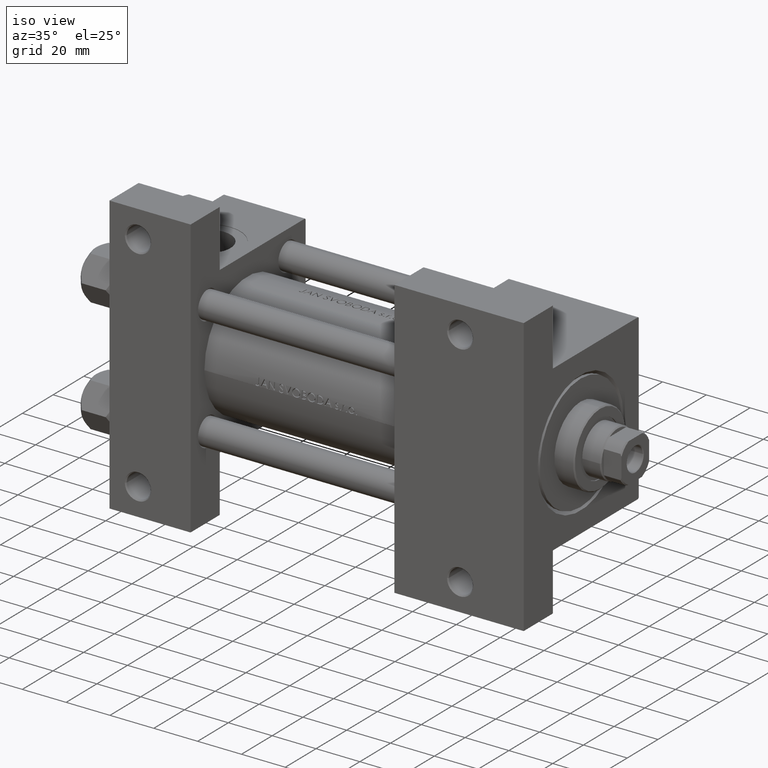
[diagram: clean part render]
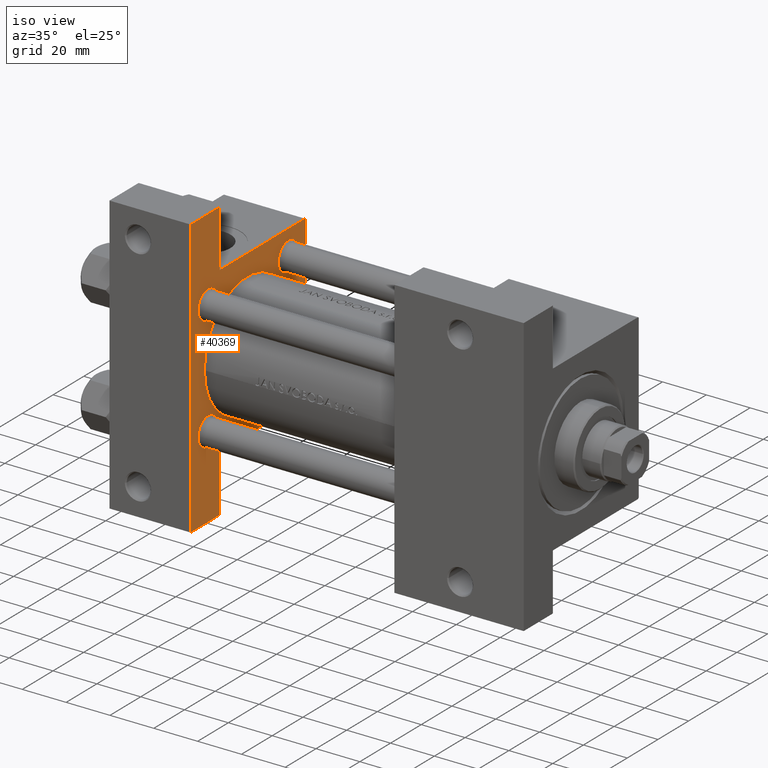
[diagram: same view with one face highlighted and labeled with its STEP entity id]
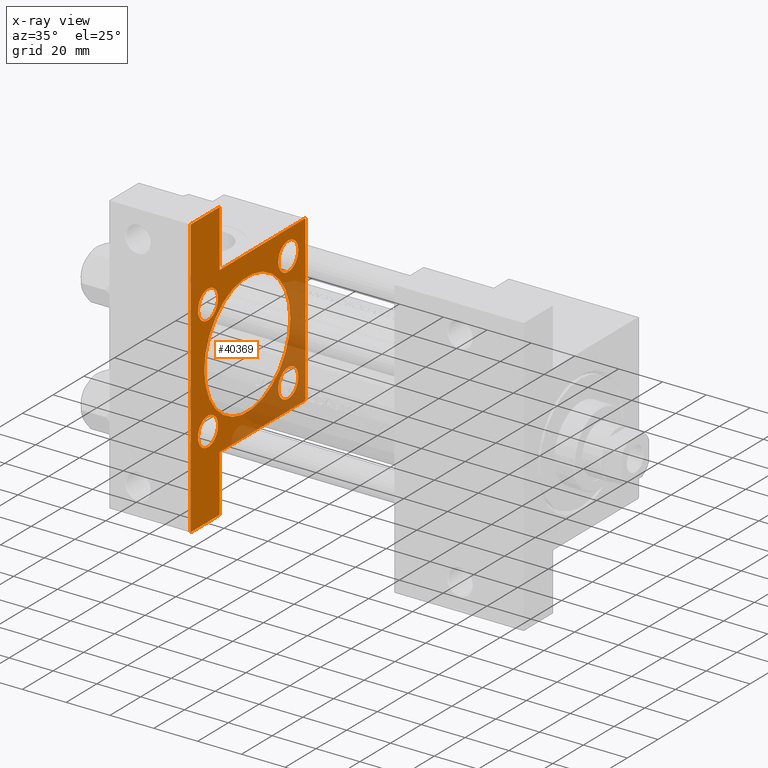
[diagram: x-ray of the same camera — body ghosted, the highlighted face saturated]
A machine part, iso view. The second image highlights one B-rep face of the part: STEP entity #40369.
The next image is the same camera in x-ray: the body ghosted, the highlighted face saturated — about 24% of this face is hidden behind the body in this view.
In plain terms, the highlighted planar face has unit normal (-1, 0, -0).
Its self-contained STEP definition (entity closure, byte-faithful):
#186 = VECTOR ( 'NONE', #20572, 1000.000000000000000 ) ;
#249 = CARTESIAN_POINT ( 'NONE',  ( 37.00000000000001421, 63.50000000000000000, -18.50000000000000355 ) ) ;
#439 = CARTESIAN_POINT ( 'NONE',  ( 37.00000000000000000, 26.14999999999999858, 32.65000000000001279 ) ) ;
#467 = VERTEX_POINT ( 'NONE', #5055 ) ;
#503 = VERTEX_POINT ( 'NONE', #12493 ) ;
#742 = EDGE_LOOP ( 'NONE', ( #37550, #31159 ) ) ;
#1534 = VERTEX_POINT ( 'NONE', #38462 ) ;
#1825 = LINE ( 'NONE', #33146, #16637 ) ;
#2085 = VECTOR ( 'NONE', #39227, 1000.000000000000000 ) ;
#2123 = LINE ( 'NONE', #35484, #2085 ) ;
#2684 = LINE ( 'NONE', #39788, #3213 ) ;
#2832 = CARTESIAN_POINT ( 'NONE',  ( 37.00000000000000000, 36.99999999999999289, 37.50000000000000000 ) ) ;
#3213 = VECTOR ( 'NONE', #13873, 1000.000000000000000 ) ;
#3724 = CARTESIAN_POINT ( 'NONE',  ( 37.00000000000001421, 63.50000000000001421, 26.72167621838005047 ) ) ;
#4688 = CIRCLE ( 'NONE', #32482, 6.500000000000030198 ) ;
#5055 = CARTESIAN_POINT ( 'NONE',  ( 37.00000000000000000, -26.14999999999999147, 32.65000000000004832 ) ) ;
#5117 = VERTEX_POINT ( 'NONE', #44706 ) ;
#5361 = PLANE ( 'NONE',  #34056 ) ;
#5362 = VERTEX_POINT ( 'NONE', #42318 ) ;
#5485 = ORIENTED_EDGE ( 'NONE', *, *, #44597, .T. ) ;
#5553 = CARTESIAN_POINT ( 'NONE',  ( 37.00000000000000000, 37.49999999999999289, -37.50000000000000000 ) ) ;
#5849 = VERTEX_POINT ( 'NONE', #9643 ) ;
#6180 = CARTESIAN_POINT ( 'NONE',  ( 37.00000000000000000, 26.14999999999999858, -32.65000000000000568 ) ) ;
#6504 = ORIENTED_EDGE ( 'NONE', *, *, #34031, .F. ) ;
#6717 = DIRECTION ( 'NONE',  ( 1.000000000000000000, -0.000000000000000000, 0.000000000000000000 ) ) ;
#7067 = DIRECTION ( 'NONE',  ( 0.000000000000000000, 0.000000000000000000, 1.000000000000000000 ) ) ;
#7192 = EDGE_CURVE ( 'NONE', #5362, #46619, #2123, .T. ) ;
#7341 = VERTEX_POINT ( 'NONE', #38171 ) ;
#7387 = CARTESIAN_POINT ( 'NONE',  ( 37.00000000000000000, -26.14999999999999147, -32.65000000000004121 ) ) ;
#7727 = VERTEX_POINT ( 'NONE', #12705 ) ;
#7911 = EDGE_CURVE ( 'NONE', #1534, #5849, #41837, .T. ) ;
#8143 = CIRCLE ( 'NONE', #13729, 6.500000000000037303 ) ;
#8235 = DIRECTION ( 'NONE',  ( -1.000000000000000000, 0.000000000000000000, -0.000000000000000000 ) ) ;
#8456 = CARTESIAN_POINT ( 'NONE',  ( 37.00000000000000000, -63.50000000000000000, -18.50000000000000355 ) ) ;
#9100 = FACE_BOUND ( 'NONE', #38774, .T. ) ;
#9205 = CARTESIAN_POINT ( 'NONE',  ( 37.00000000000000000, -63.49999999999998579, -18.50000000000000355 ) ) ;
#9643 = CARTESIAN_POINT ( 'NONE',  ( 37.00000000000000711, 0.000000000000000000, 27.50000000000000000 ) ) ;
#10800 = CARTESIAN_POINT ( 'NONE',  ( 37.00000000000000000, 26.14999999999999858, -26.15000000000000213 ) ) ;
#12127 = CARTESIAN_POINT ( 'NONE',  ( 37.00000000000000000, -26.14999999999999147, 26.15000000000000924 ) ) ;
#12189 = VERTEX_POINT ( 'NONE', #7387 ) ;
#12453 = EDGE_CURVE ( 'NONE', #48964, #24298, #20574, .T. ) ;
#12493 = CARTESIAN_POINT ( 'NONE',  ( 37.00000000000000000, -37.50000000000000711, 36.99999999999999289 ) ) ;
#12705 = CARTESIAN_POINT ( 'NONE',  ( 37.00000000000000000, -37.00000000000000711, 37.49999999999999289 ) ) ;
#13260 = EDGE_CURVE ( 'NONE', #12189, #44171, #4688, .T. ) ;
#13729 = AXIS2_PLACEMENT_3D ( 'NONE', #17850, #39782, #29051 ) ;
#13788 = DIRECTION ( 'NONE',  ( 0.000000000000000000, -0.7071067811865474617, 0.7071067811865474617 ) ) ;
#13873 = DIRECTION ( 'NONE',  ( 0.000000000000000000, -1.000000000000000000, -9.251858538542971581E-17 ) ) ;
#13927 = ORIENTED_EDGE ( 'NONE', *, *, #7192, .F. ) ;
#13967 = DIRECTION ( 'NONE',  ( 0.000000000000000000, 0.000000000000000000, 1.000000000000000000 ) ) ;
#13995 = EDGE_CURVE ( 'NONE', #44171, #12189, #38900, .T. ) ;
#14961 = VECTOR ( 'NONE', #46736, 1000.000000000000000 ) ;
#15607 = DIRECTION ( 'NONE',  ( -1.000000000000000000, 0.000000000000000000, -0.000000000000000000 ) ) ;
#15674 = LINE ( 'NONE', #9205, #43732 ) ;
#16475 = EDGE_CURVE ( 'NONE', #48964, #48065, #15674, .T. ) ;
#16549 = VECTOR ( 'NONE', #20737, 1000.000000000000000 ) ;
#16637 = VECTOR ( 'NONE', #28697, 1000.000000000000114 ) ;
#16638 = AXIS2_PLACEMENT_3D ( 'NONE', #25168, #48105, #13967 ) ;
#16886 = AXIS2_PLACEMENT_3D ( 'NONE', #25091, #33294, #37525 ) ;
#16984 = EDGE_CURVE ( 'NONE', #5117, #467, #35835, .T. ) ;
#17084 = DIRECTION ( 'NONE',  ( 0.000000000000000000, 0.000000000000000000, 1.000000000000000000 ) ) ;
#17237 = LINE ( 'NONE', #5553, #16549 ) ;
#17433 = DIRECTION ( 'NONE',  ( 1.000000000000000000, -0.000000000000000000, 0.000000000000000000 ) ) ;
#17571 = DIRECTION ( 'NONE',  ( 0.000000000000000000, 0.000000000000000000, 1.000000000000000000 ) ) ;
#17850 = CARTESIAN_POINT ( 'NONE',  ( 37.00000000000000000, -26.14999999999999147, 26.15000000000000924 ) ) ;
#18198 = ORIENTED_EDGE ( 'NONE', *, *, #26382, .T. ) ;
#18325 = CARTESIAN_POINT ( 'NONE',  ( 37.00000000000000000, -37.50000000000000711, 37.49999999999999289 ) ) ;
#18911 = CIRCLE ( 'NONE', #26052, 6.500000000000002665 ) ;
#19214 = VERTEX_POINT ( 'NONE', #38947 ) ;
#19258 = CIRCLE ( 'NONE', #16886, 6.500000000000002665 ) ;
#19481 = CARTESIAN_POINT ( 'NONE',  ( 37.00000000000000000, 37.49999999999999289, 37.00000000000000000 ) ) ;
#19648 = ORIENTED_EDGE ( 'NONE', *, *, #33668, .T. ) ;
#19669 = EDGE_LOOP ( 'NONE', ( #30538, #21922 ) ) ;
#19682 = VERTEX_POINT ( 'NONE', #439 ) ;
#19845 = EDGE_LOOP ( 'NONE', ( #46196, #18198 ) ) ;
#20285 = DIRECTION ( 'NONE',  ( 0.000000000000000000, 0.000000000000000000, 1.000000000000000000 ) ) ;
#20300 = FACE_BOUND ( 'NONE', #19669, .T. ) ;
#20572 = DIRECTION ( 'NONE',  ( 0.000000000000000000, -1.734723475976806848E-16, -1.000000000000000000 ) ) ;
#20574 = LINE ( 'NONE', #47219, #14961 ) ;
#20726 = VECTOR ( 'NONE', #13788, 1000.000000000000114 ) ;
#20737 = DIRECTION ( 'NONE',  ( 0.000000000000000000, -1.000000000000000000, -9.251858538542972814E-17 ) ) ;
#20772 = CARTESIAN_POINT ( 'NONE',  ( 37.00000000000000000, 26.14999999999999858, 26.15000000000000213 ) ) ;
#20845 = CIRCLE ( 'NONE', #26402, 6.500000000000008882 ) ;
#20869 = EDGE_CURVE ( 'NONE', #25613, #5362, #48034, .T. ) ;
#21316 = CARTESIAN_POINT ( 'NONE',  ( 37.00000000000000000, -26.14999999999999147, -26.15000000000000924 ) ) ;
#21582 = EDGE_CURVE ( 'NONE', #25613, #19214, #47923, .T. ) ;
#21899 = CARTESIAN_POINT ( 'NONE',  ( 37.00000000000000711, 0.000000000000000000, -0.5000000000000004441 ) ) ;
#21922 = ORIENTED_EDGE ( 'NONE', *, *, #13995, .T. ) ;
#22314 = LINE ( 'NONE', #18325, #26802 ) ;
#22653 = ORIENTED_EDGE ( 'NONE', *, *, #12453, .T. ) ;
#23311 = AXIS2_PLACEMENT_3D ( 'NONE', #21899, #6717, #37327 ) ;
#23413 = DIRECTION ( 'NONE',  ( 0.000000000000000000, 0.000000000000000000, 1.000000000000000000 ) ) ;
#23531 = DIRECTION ( 'NONE',  ( -1.000000000000000000, 0.000000000000000000, -0.000000000000000000 ) ) ;
#23779 = DIRECTION ( 'NONE',  ( -0.000000000000000000, 0.000000000000000000, 1.000000000000000000 ) ) ;
#23885 = DIRECTION ( 'NONE',  ( -0.000000000000000000, 1.000000000000000000, 0.000000000000000000 ) ) ;
#24244 = ORIENTED_EDGE ( 'NONE', *, *, #21582, .T. ) ;
#24298 = VERTEX_POINT ( 'NONE', #26683 ) ;
#24710 = EDGE_CURVE ( 'NONE', #37961, #30541, #19258, .T. ) ;
#25091 = CARTESIAN_POINT ( 'NONE',  ( 37.00000000000000000, 26.14999999999999858, -26.15000000000000213 ) ) ;
#25168 = CARTESIAN_POINT ( 'NONE',  ( 37.00000000000000000, -26.14999999999999147, -26.15000000000000924 ) ) ;
#25180 = EDGE_CURVE ( 'NONE', #7341, #19682, #20845, .T. ) ;
#25613 = VERTEX_POINT ( 'NONE', #19481 ) ;
#26052 = AXIS2_PLACEMENT_3D ( 'NONE', #10800, #41178, #7067 ) ;
#26382 = EDGE_CURVE ( 'NONE', #467, #5117, #8143, .T. ) ;
#26402 = AXIS2_PLACEMENT_3D ( 'NONE', #20772, #32204, #20285 ) ;
#26683 = CARTESIAN_POINT ( 'NONE',  ( 37.00000000000000000, -63.50000000000000000, -37.49999999999999289 ) ) ;
#26802 = VECTOR ( 'NONE', #30013, 1000.000000000000000 ) ;
#26857 = EDGE_CURVE ( 'NONE', #5849, #1534, #40764, .T. ) ;
#27843 = ORIENTED_EDGE ( 'NONE', *, *, #7911, .F. ) ;
#28697 = DIRECTION ( 'NONE',  ( -0.000000000000000000, -0.7071067811865474617, -0.7071067811865474617 ) ) ;
#29051 = DIRECTION ( 'NONE',  ( 0.000000000000000000, 0.000000000000000000, 1.000000000000000000 ) ) ;
#29658 = ORIENTED_EDGE ( 'NONE', *, *, #20869, .F. ) ;
#30013 = DIRECTION ( 'NONE',  ( 0.000000000000000000, 9.251858538542971581E-17, -1.000000000000000000 ) ) ;
#30538 = ORIENTED_EDGE ( 'NONE', *, *, #13260, .T. ) ;
#30541 = VERTEX_POINT ( 'NONE', #6180 ) ;
#30993 = FACE_BOUND ( 'NONE', #742, .T. ) ;
#30995 = CARTESIAN_POINT ( 'NONE',  ( 37.00000000000000000, 26.14999999999999858, -19.65000000000000213 ) ) ;
#31159 = ORIENTED_EDGE ( 'NONE', *, *, #31993, .T. ) ;
#31486 = FACE_BOUND ( 'NONE', #19845, .T. ) ;
#31801 = VECTOR ( 'NONE', #36795, 1000.000000000000000 ) ;
#31993 = EDGE_CURVE ( 'NONE', #19682, #7341, #33924, .T. ) ;
#32204 = DIRECTION ( 'NONE',  ( -1.000000000000000000, 0.000000000000000000, -0.000000000000000000 ) ) ;
#32482 = AXIS2_PLACEMENT_3D ( 'NONE', #21316, #39997, #17571 ) ;
#32535 = EDGE_CURVE ( 'NONE', #503, #48065, #22314, .T. ) ;
#33146 = CARTESIAN_POINT ( 'NONE',  ( 37.00000000000000000, -37.50000000000000711, 36.99999999999999289 ) ) ;
#33294 = DIRECTION ( 'NONE',  ( -1.000000000000000000, 0.000000000000000000, -0.000000000000000000 ) ) ;
#33668 = EDGE_CURVE ( 'NONE', #30541, #37961, #18911, .T. ) ;
#33924 = CIRCLE ( 'NONE', #44310, 6.500000000000008882 ) ;
#33991 = ORIENTED_EDGE ( 'NONE', *, *, #41695, .T. ) ;
#34031 = EDGE_CURVE ( 'NONE', #35044, #24298, #17237, .T. ) ;
#34056 = AXIS2_PLACEMENT_3D ( 'NONE', #38470, #23531, #23779 ) ;
#34117 = CARTESIAN_POINT ( 'NONE',  ( 37.00000000000000000, -26.14999999999999147, -19.64999999999998082 ) ) ;
#34886 = CARTESIAN_POINT ( 'NONE',  ( 37.00000000000000000, -37.50000000000000000, -18.50000000000000355 ) ) ;
#35044 = VERTEX_POINT ( 'NONE', #44989 ) ;
#35484 = CARTESIAN_POINT ( 'NONE',  ( 37.00000000000001421, 63.50000000000001421, -18.50000000000000355 ) ) ;
#35835 = CIRCLE ( 'NONE', #44595, 6.500000000000037303 ) ;
#36795 = DIRECTION ( 'NONE',  ( 0.000000000000000000, 0.000000000000000000, -1.000000000000000000 ) ) ;
#37327 = DIRECTION ( 'NONE',  ( 0.000000000000000000, 0.000000000000000000, 1.000000000000000000 ) ) ;
#37525 = DIRECTION ( 'NONE',  ( 0.000000000000000000, 0.000000000000000000, 1.000000000000000000 ) ) ;
#37550 = ORIENTED_EDGE ( 'NONE', *, *, #25180, .T. ) ;
#37818 = LINE ( 'NONE', #3724, #186 ) ;
#37961 = VERTEX_POINT ( 'NONE', #30995 ) ;
#38171 = CARTESIAN_POINT ( 'NONE',  ( 37.00000000000000000, 26.14999999999999858, 19.64999999999999858 ) ) ;
#38462 = CARTESIAN_POINT ( 'NONE',  ( 37.00000000000000711, 3.429011037612588487E-15, -28.50000000000000000 ) ) ;
#38470 = CARTESIAN_POINT ( 'NONE',  ( 37.00000000000000000, 0.000000000000000000, 0.000000000000000000 ) ) ;
#38774 = EDGE_LOOP ( 'NONE', ( #41859, #27843 ) ) ;
#38852 = CARTESIAN_POINT ( 'NONE',  ( 37.00000000000000000, 26.14999999999999858, 26.15000000000000213 ) ) ;
#38900 = CIRCLE ( 'NONE', #16638, 6.500000000000030198 ) ;
#38947 = CARTESIAN_POINT ( 'NONE',  ( 37.00000000000000000, 36.99999999999999289, 37.50000000000000000 ) ) ;
#39211 = EDGE_LOOP ( 'NONE', ( #5485, #33991, #44547, #40335, #22653, #6504, #41835, #13927, #29658, #24244 ) ) ;
#39227 = DIRECTION ( 'NONE',  ( 2.668805347656626678E-16, 1.000000000000000000, 0.000000000000000000 ) ) ;
#39454 = FACE_OUTER_BOUND ( 'NONE', #39211, .T. ) ;
#39782 = DIRECTION ( 'NONE',  ( -1.000000000000000000, 0.000000000000000000, -0.000000000000000000 ) ) ;
#39788 = CARTESIAN_POINT ( 'NONE',  ( 37.00000000000000000, 37.49999999999999289, 37.50000000000000000 ) ) ;
#39997 = DIRECTION ( 'NONE',  ( -1.000000000000000000, 0.000000000000000000, -0.000000000000000000 ) ) ;
#40335 = ORIENTED_EDGE ( 'NONE', *, *, #16475, .F. ) ;
#40369 = ADVANCED_FACE ( 'NONE', ( #20300, #46944, #31486, #30993, #9100, #39454 ), #5361, .F. ) ;
#40542 = CARTESIAN_POINT ( 'NONE',  ( 37.00000000000000000, 37.49999999999999289, 37.50000000000000000 ) ) ;
#40764 = CIRCLE ( 'NONE', #23311, 28.00000000000000000 ) ;
#41178 = DIRECTION ( 'NONE',  ( -1.000000000000000000, 0.000000000000000000, -0.000000000000000000 ) ) ;
#41695 = EDGE_CURVE ( 'NONE', #7727, #503, #1825, .T. ) ;
#41835 = ORIENTED_EDGE ( 'NONE', *, *, #48369, .F. ) ;
#41837 = CIRCLE ( 'NONE', #42650, 28.00000000000000000 ) ;
#41859 = ORIENTED_EDGE ( 'NONE', *, *, #26857, .F. ) ;
#42318 = CARTESIAN_POINT ( 'NONE',  ( 37.00000000000000711, 37.50000000000000711, -18.50000000000000355 ) ) ;
#42650 = AXIS2_PLACEMENT_3D ( 'NONE', #48561, #17433, #48805 ) ;
#42847 = ORIENTED_EDGE ( 'NONE', *, *, #24710, .T. ) ;
#43732 = VECTOR ( 'NONE', #23885, 1000.000000000000000 ) ;
#44171 = VERTEX_POINT ( 'NONE', #34117 ) ;
#44310 = AXIS2_PLACEMENT_3D ( 'NONE', #38852, #8235, #23413 ) ;
#44547 = ORIENTED_EDGE ( 'NONE', *, *, #32535, .T. ) ;
#44595 = AXIS2_PLACEMENT_3D ( 'NONE', #12127, #15607, #17084 ) ;
#44597 = EDGE_CURVE ( 'NONE', #19214, #7727, #2684, .T. ) ;
#44706 = CARTESIAN_POINT ( 'NONE',  ( 37.00000000000000000, -26.14999999999999147, 19.64999999999997371 ) ) ;
#44989 = CARTESIAN_POINT ( 'NONE',  ( 37.00000000000001421, 63.50000000000000000, -37.50000000000002132 ) ) ;
#46196 = ORIENTED_EDGE ( 'NONE', *, *, #16984, .T. ) ;
#46619 = VERTEX_POINT ( 'NONE', #249 ) ;
#46736 = DIRECTION ( 'NONE',  ( 0.000000000000000000, -1.734723475976806848E-16, -1.000000000000000000 ) ) ;
#46944 = FACE_BOUND ( 'NONE', #48219, .T. ) ;
#47219 = CARTESIAN_POINT ( 'NONE',  ( 37.00000000000000000, -63.49999999999998579, 26.72167621838007889 ) ) ;
#47923 = LINE ( 'NONE', #2832, #20726 ) ;
#48034 = LINE ( 'NONE', #40542, #31801 ) ;
#48065 = VERTEX_POINT ( 'NONE', #34886 ) ;
#48105 = DIRECTION ( 'NONE',  ( -1.000000000000000000, 0.000000000000000000, -0.000000000000000000 ) ) ;
#48219 = EDGE_LOOP ( 'NONE', ( #19648, #42847 ) ) ;
#48369 = EDGE_CURVE ( 'NONE', #46619, #35044, #37818, .T. ) ;
#48561 = CARTESIAN_POINT ( 'NONE',  ( 37.00000000000000711, 0.000000000000000000, -0.5000000000000004441 ) ) ;
#48805 = DIRECTION ( 'NONE',  ( 0.000000000000000000, 0.000000000000000000, 1.000000000000000000 ) ) ;
#48964 = VERTEX_POINT ( 'NONE', #8456 ) ;